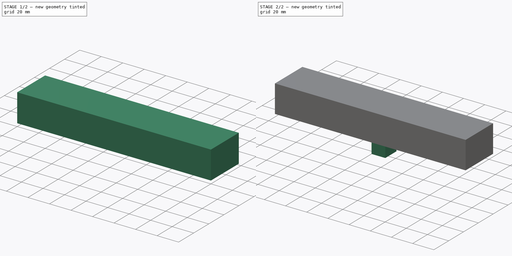
[diagram: build sequence overview — one tinted view per stage of 2, left to right]
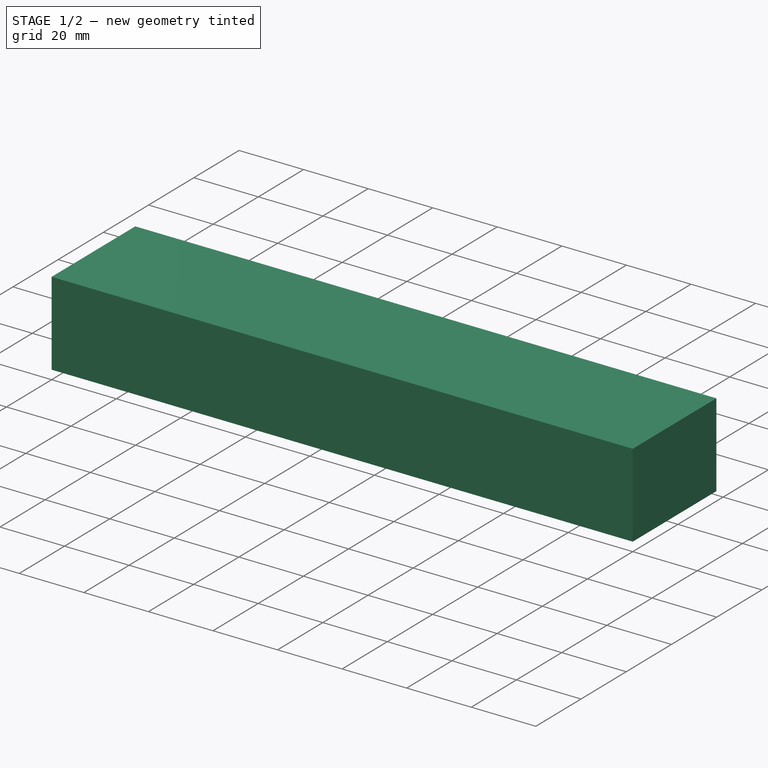
[diagram: stage 1 of 2 — iso view after this stage's code; geometry added in this stage tinted green]
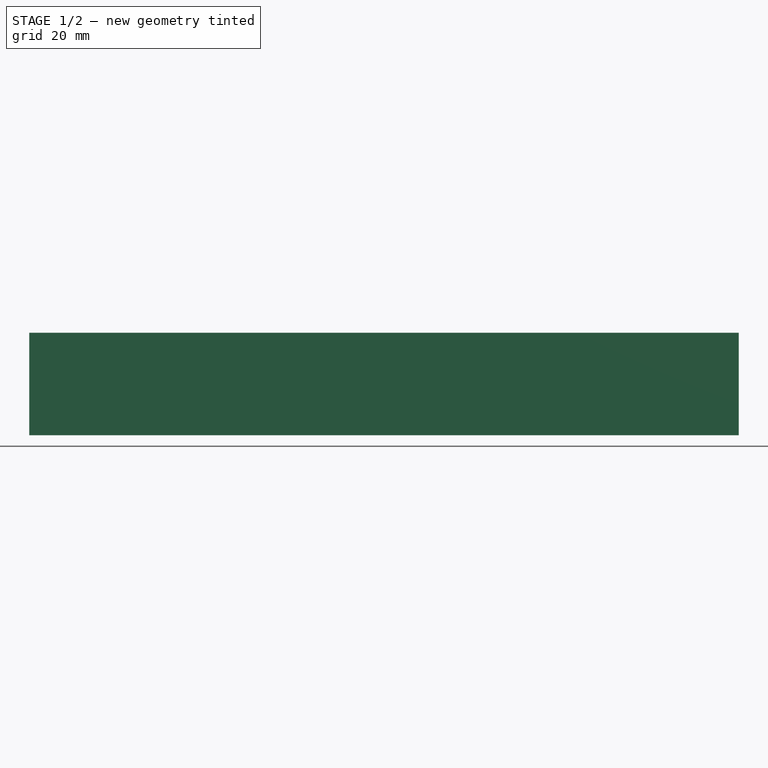
[diagram: stage 1 of 2 — front view after this stage's code; geometry added in this stage tinted green]
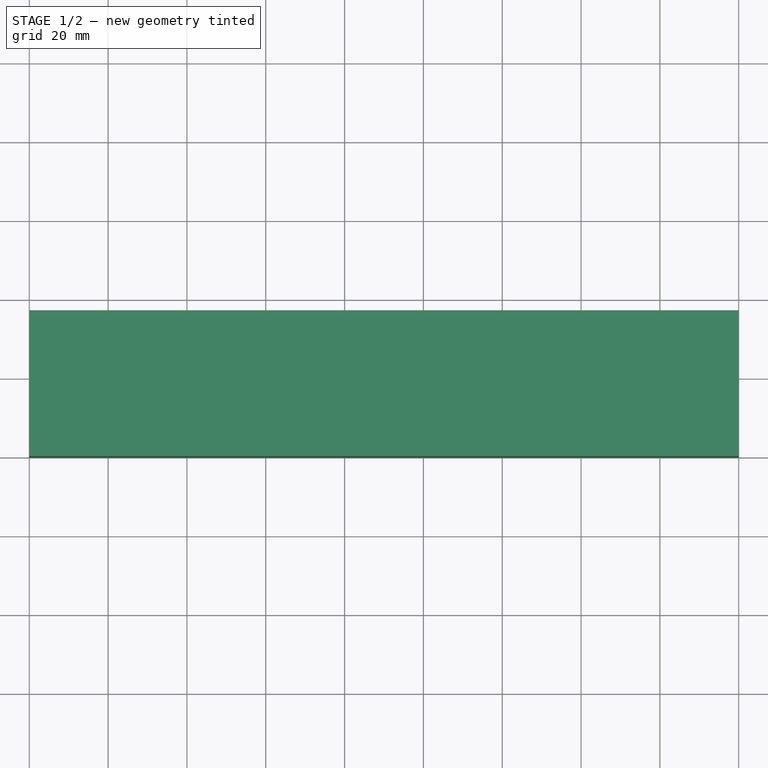
[diagram: stage 1 of 2 — top view after this stage's code; geometry added in this stage tinted green]
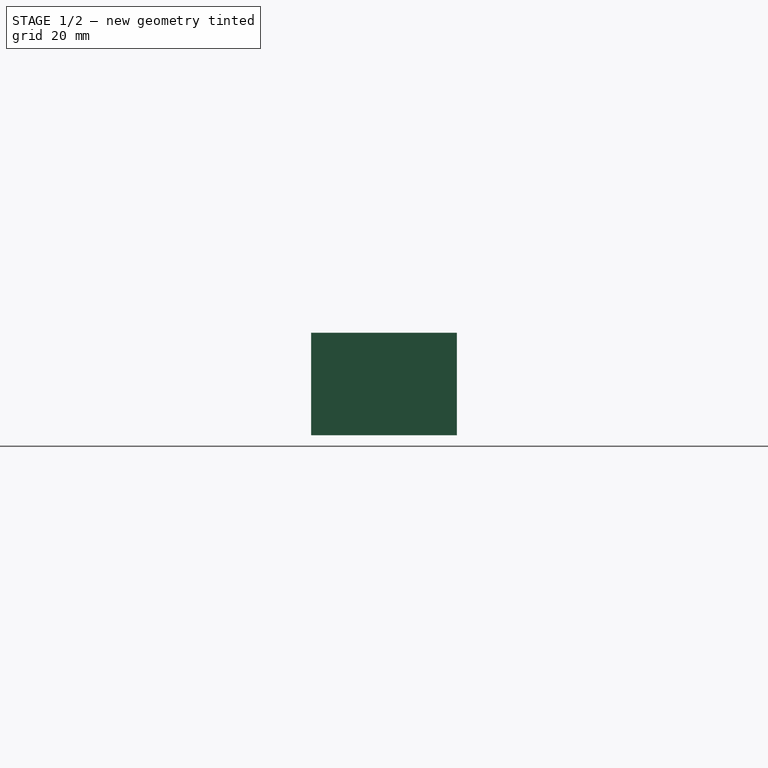
[diagram: stage 1 of 2 — right view after this stage's code; geometry added in this stage tinted green]
FCSTD DOCUMENT  (FreeCAD 0.14R3702 (Git))
Label: camera
License: CC-BY 3.0
LicenseURL: http://creativecommons.org/licenses/by/3.0/
objects: Part::Box×1, Sketcher::SketchObject×1, PartDesign::Pad×1
note: 4 computed .brp shape members not serialized (recipe doc carries the construction recipe); baked Part::Feature solids carry a one-line shape summary decoded from their .brp

FEATURE [Part::Box] Box  label="camera"
  Height = 26
  Length = 180
  Width = 37
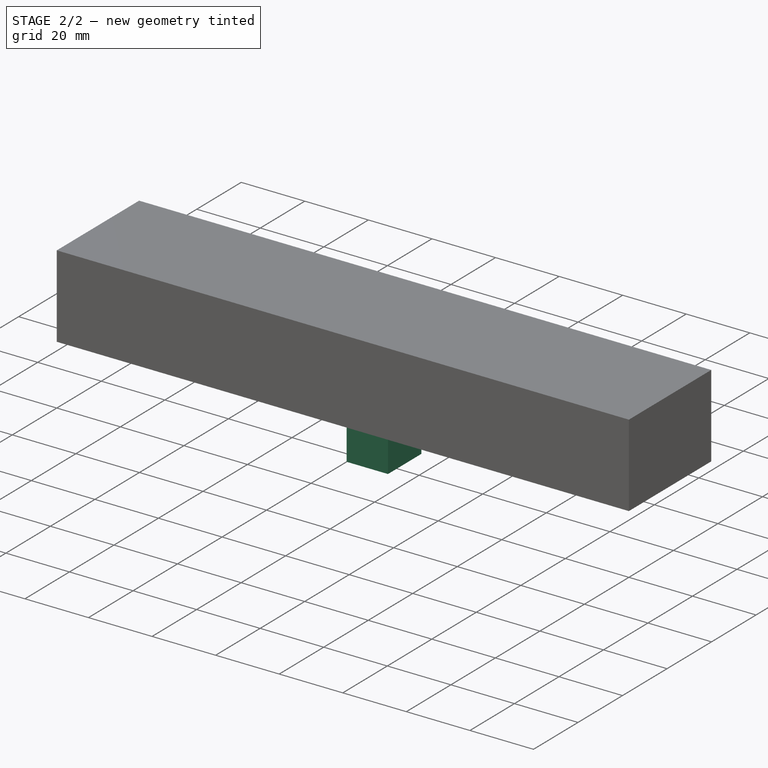
[diagram: stage 2 of 2 — iso view after this stage's code; geometry added in this stage tinted green]
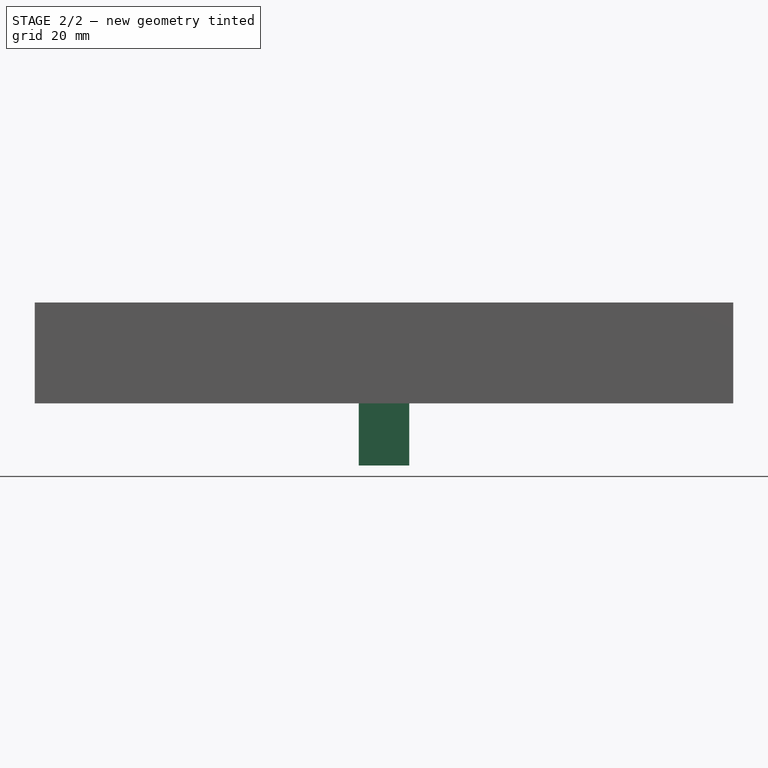
[diagram: stage 2 of 2 — front view after this stage's code; geometry added in this stage tinted green]
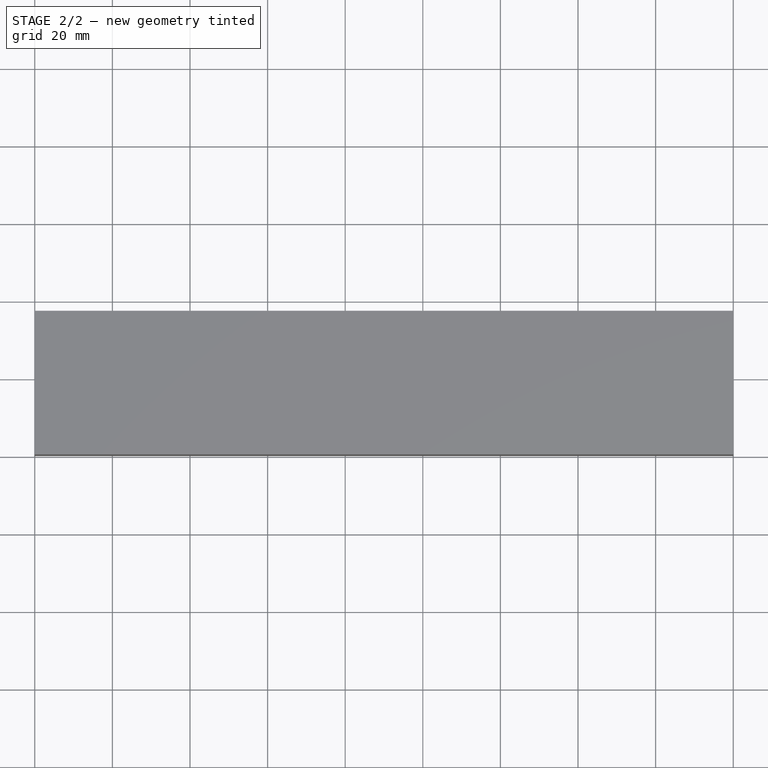
[diagram: stage 2 of 2 — top view after this stage's code; geometry added in this stage tinted green]
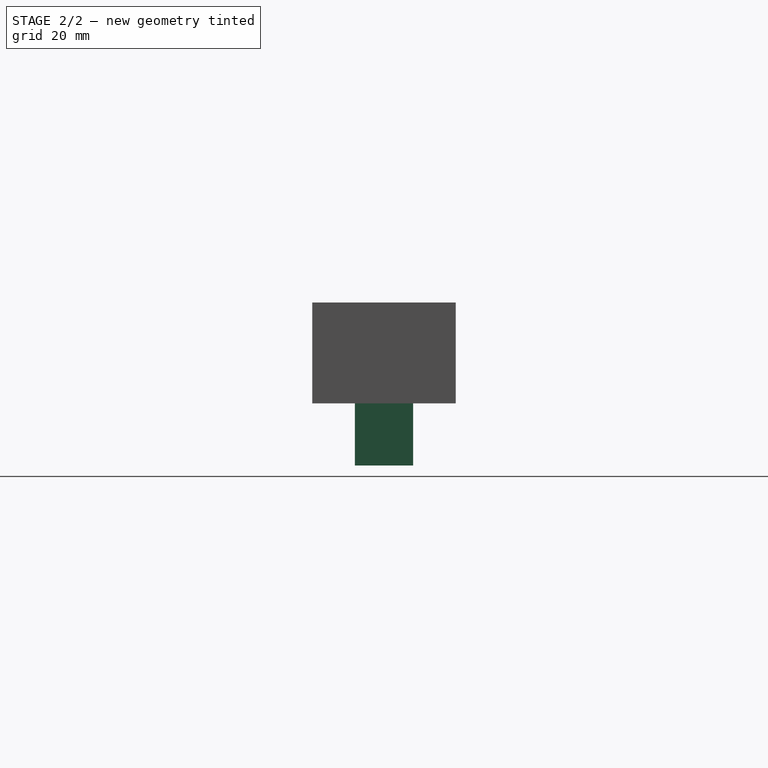
[diagram: stage 2 of 2 — right view after this stage's code; geometry added in this stage tinted green]
FEATURE [Sketcher::SketchObject] Sketch
  Placement = pos=(0,0,0) rot=(1,0,0;3.14159rad)
  Support = -> Box [Face5]
  sketch-geometry (4):
    g0: LineSegment StartX=83.5 StartY=-11 StartZ=0 EndX=96.5 EndY=-11 EndZ=0
    g1: LineSegment StartX=96.5 StartY=-11 StartZ=0 EndX=96.5 EndY=-26 EndZ=0
    g2: LineSegment StartX=96.5 StartY=-26 StartZ=0 EndX=83.5 EndY=-26 EndZ=0
    g3: LineSegment StartX=83.5 StartY=-26 StartZ=0 EndX=83.5 EndY=-11 EndZ=0
  constraints (12):
    c: Coincident(g0,g1)
    c: Coincident(g1,g2)
    c: Coincident(g2,g3)
    c: Coincident(g3,g0)
    c: Horizontal(g0)
    c: Horizontal(g2)
    c: Vertical(g1)
    c: Vertical(g3)
    c: DistanceX(g0) = 13
    c: DistanceY(g3) = 15
    c: DistanceX(g-1,g0) = 83.5
    c: DistanceY(g-1,g0) = -11
FEATURE [PartDesign::Pad] Pad
  Length = 16
  Length2 = 100
  Sketch = -> Sketch
  Type = 0
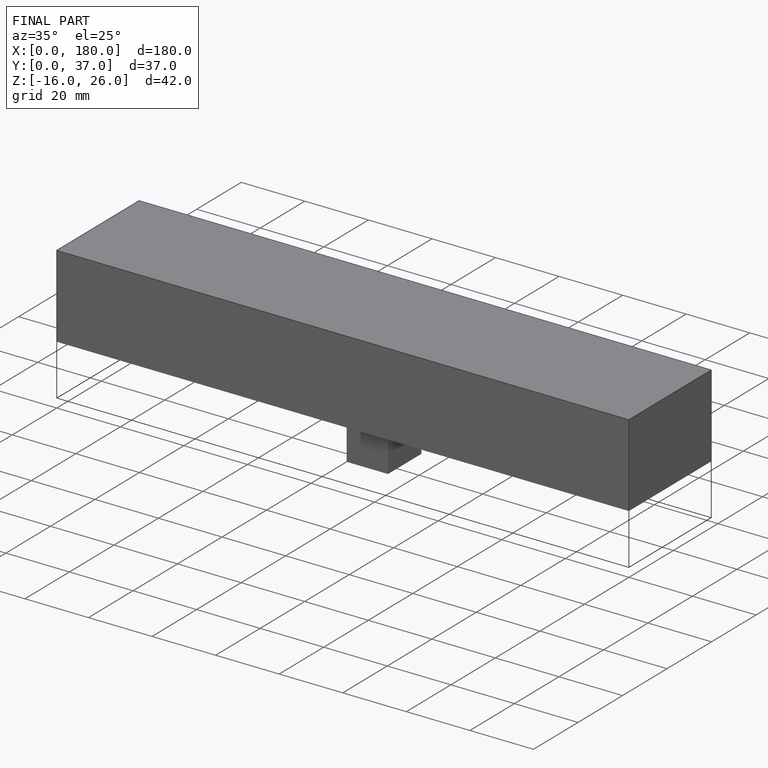
[diagram: finished part — iso view with bounding-box wireframe]
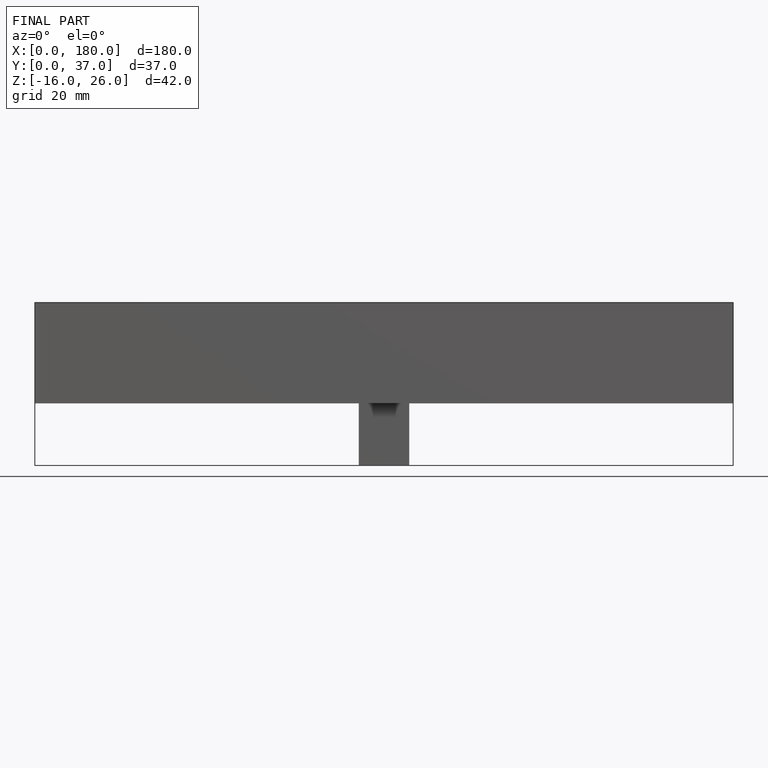
[diagram: finished part — front view with bounding-box wireframe]
